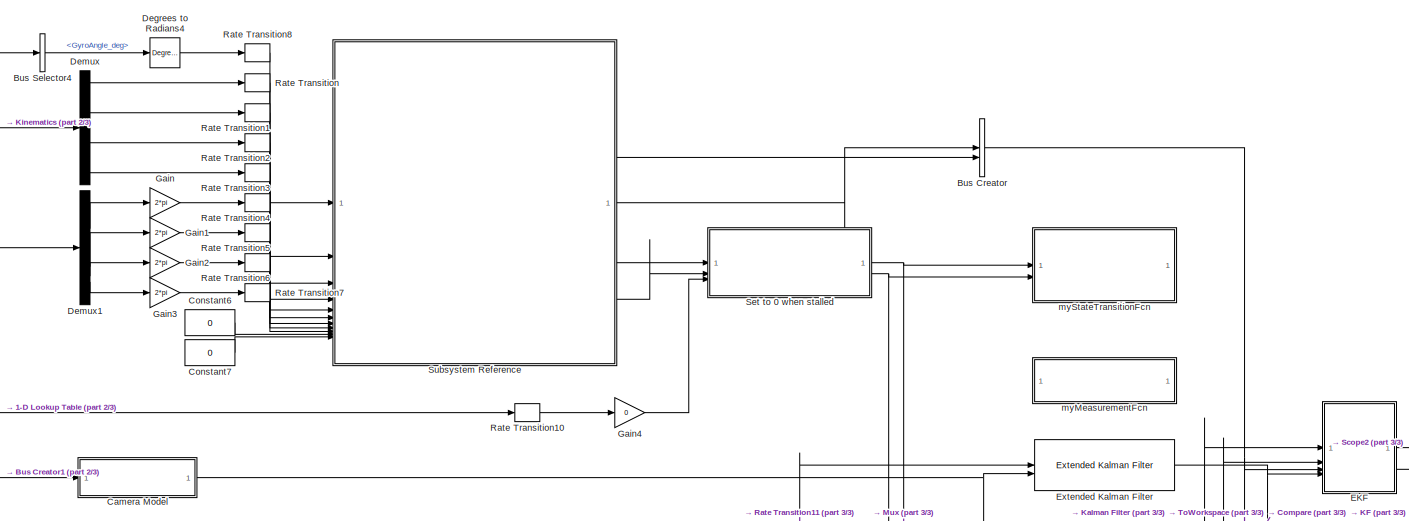
[diagram: root canvas - part 1/3, top center region]
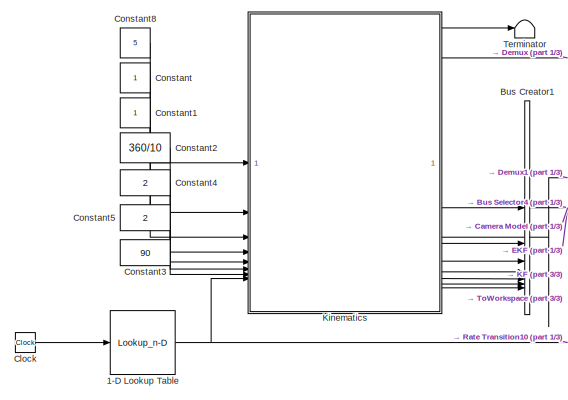
[diagram: root canvas - part 2/3, top left region]
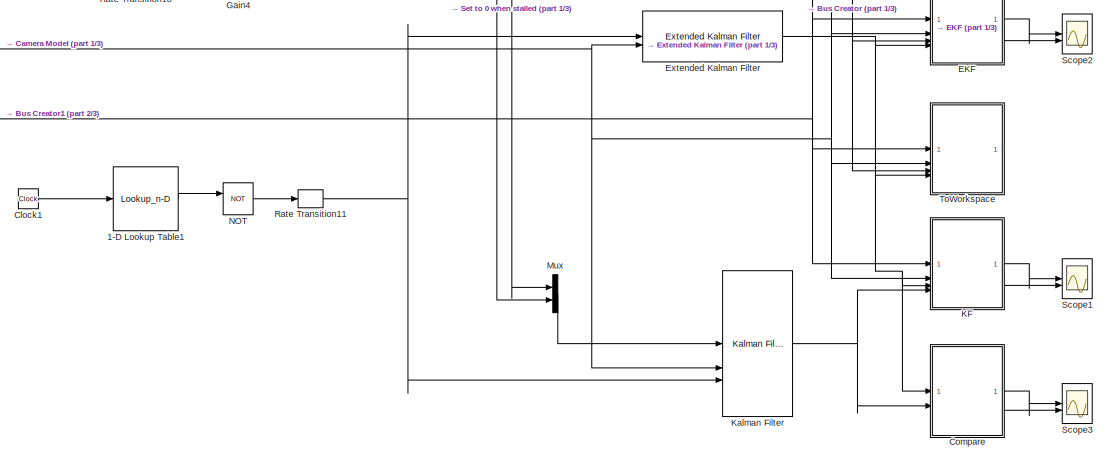
[diagram: root canvas - part 3/3, bottom right region]
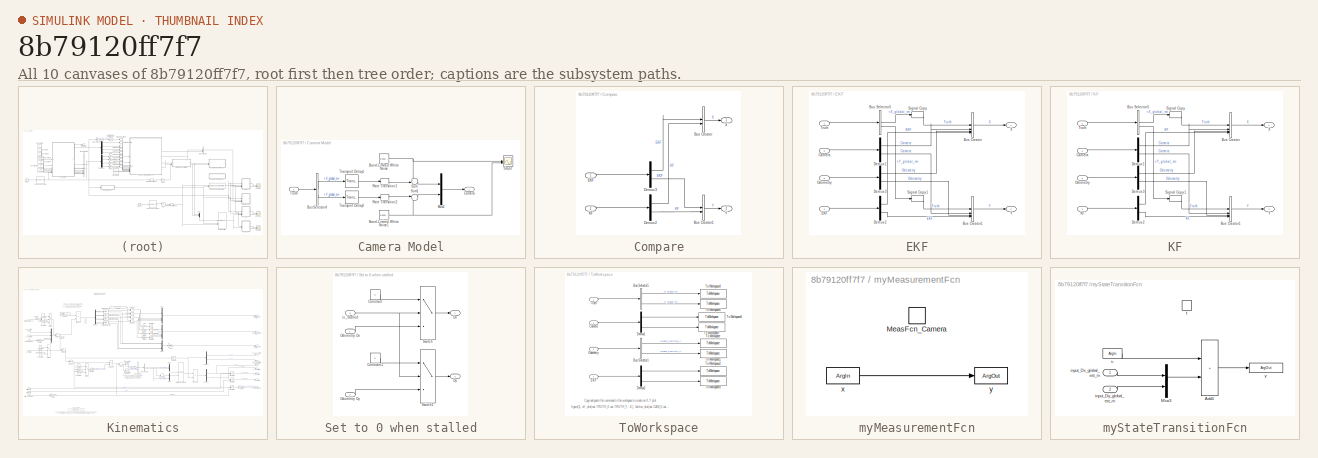
[diagram: thumbnail index - all 10 canvases of the model, root first then tree order]
MODEL slx_8b79120ff7f7
KIND model
CONFIG AbsTol = auto
CONFIG EnableMultiTasking = off
CONFIG FixedStep = auto
CONFIG MaxStep = 0.01
CONFIG MinStep = auto
CONFIG RelTol = 1e-3
CONFIG SampleTimeConstraint = Unconstrained
CONFIG SolverName = VariableStepAuto
CONFIG StartTime = 0.0
CONFIG StopTime = 20
BLOCK [Lookup_n-D] 1-D Lookup Table
  BreakpointsForDimension1 = [0 7 7.1 10 10.1 15]
  InputPortMap = u0
  InternalRulePriority = Speed
  NumberOfTableDimensions = 1
  RndMeth = Simplest
  Table = [0 0 1 1 0 0]*0
BLOCK [Lookup_n-D] 1-D Lookup Table1
  BreakpointsForDimension1 = [0 7 7.1 10 10.1 15]
  InputPortMap = u0
  InternalRulePriority = Speed
  NumberOfTableDimensions = 1
  RndMeth = Simplest
  Table = [0 0 1 1 0 0]
BLOCK [BusCreator] Bus Creator
  DisplayOption = bar
  InheritFromInputs = on
  Inputs = 2
BLOCK [BusCreator] Bus Creator1
  DisplayOption = bar
  InheritFromInputs = on
  Inputs = 7
BLOCK [BusSelector] Bus Selector4
  OutputSignals = GyroAngle_deg
BLOCK [SubSystem] Camera Model
BLOCK [Reference] Camera Model/Band-Limited White Noise  REF=simulink/Sources/Band-Limited
White Noise
  SourceBlock = simulink/Sources/Band-Limited\nWhite Noise
  SourceType = Band-Limited White Noise.
BLOCK [Reference] Camera Model/Band-Limited White Noise1  REF=simulink/Sources/Band-Limited
White Noise
  SourceBlock = simulink/Sources/Band-Limited\nWhite Noise
  SourceType = Band-Limited White Noise.
BLOCK [BusSelector] Camera Model/Bus Selector4
  OutputSignals = X_global_m,Y_global_m
BLOCK [Outport] Camera Model/Camera
BLOCK [Mux] Camera Model/Mux2
  DisplayOption = bar
  Inputs = 2
BLOCK [RateTransition] Camera Model/Rate Transition1
  OutPortSampleTime = t_sample
BLOCK [RateTransition] Camera Model/Rate Transition2
  OutPortSampleTime = t_sample
BLOCK [Scope] Camera Model/Scope
  Floating = off
  NumInputPorts = 2
  ScopeSpecificationString = Simulink.scopes.TimeScopeBlockCfg('CurrentConfiguration', extmgr.ConfigurationSet(extmgr.Configuration('Core','General UI',true),extmgr.Configuration('Core','Source UI',true),extmgr.Configuration('Sources','WiredSimulink',true,'DataLoggingVariableName','ScopeData1'),extmgr.Configuration('Visuals','Time Domain',true,'SerializedDisplays',{struct('MinYLimReal','-0.09072','MaxYLimReal','0.1248','YLabe...<+1433ch>
BLOCK [Sum] Camera Model/Sum
  Inputs = ++|
BLOCK [Sum] Camera Model/Sum1
  Inputs = |++
BLOCK [TransportDelay] Camera Model/Transport Delay1
  DelayTime = 0.1
BLOCK [TransportDelay] Camera Model/Transport Delay2
  DelayTime = 0.1
BLOCK [Inport] Camera Model/Truth
BLOCK [Clock] Clock
BLOCK [Clock] Clock1
BLOCK [SubSystem] Compare
BLOCK [BusCreator] Compare/Bus Creator
  DisplayOption = bar
  InheritFromInputs = on
  Inputs = 2
BLOCK [BusCreator] Compare/Bus Creator1
  DisplayOption = bar
  InheritFromInputs = on
  Inputs = 2
BLOCK [Demux] Compare/Demux2
  Outputs = 2
BLOCK [Demux] Compare/Demux3
  Outputs = 2
BLOCK [Inport] Compare/EKF
BLOCK [Inport] Compare/KF
  Port = 2
BLOCK [Outport] Compare/X
BLOCK [Outport] Compare/Y
  Port = 2
BLOCK [Constant] Constant
BLOCK [Constant] Constant1
BLOCK [Constant] Constant2
  Value = 360/10
BLOCK [Constant] Constant3
  Value = 90
BLOCK [Constant] Constant4
  Value = 2
BLOCK [Constant] Constant5
  Value = 2
BLOCK [Constant] Constant6
  Value = 0
BLOCK [Constant] Constant7
  Value = 0
BLOCK [Constant] Constant8
  Value = 5
BLOCK [Reference] Degrees to Radians4  REF=simulink_extras/Transformations/Degrees to
Radians
  SourceBlock = simulink_extras/Transformations/Degrees to\nRadians
  SourceType = DegreesToRadians
BLOCK [Demux] Demux
BLOCK [Demux] Demux1
BLOCK [SubSystem] EKF
BLOCK [BusCreator] EKF/Bus Creator
  DisplayOption = bar
  InheritFromInputs = on
  Inputs = 4
BLOCK [BusCreator] EKF/Bus Creator1
  DisplayOption = bar
  InheritFromInputs = on
  Inputs = 4
BLOCK [BusSelector] EKF/Bus Selector5
  OutputSignals = X_global_m,Y_global_m
BLOCK [Inport] EKF/Camera
  Port = 2
BLOCK [Demux] EKF/Demux1
  Outputs = 2
BLOCK [Demux] EKF/Demux2
  Outputs = 2
BLOCK [Demux] EKF/Demux3
  Outputs = 2
BLOCK [Inport] EKF/EKF
  Port = 4
BLOCK [Inport] EKF/Odometry
  Port = 3
BLOCK [SignalConversion] EKF/Signal Copy
  OverrideOpt = off
BLOCK [SignalConversion] EKF/Signal Copy1
  OverrideOpt = off
BLOCK [Inport] EKF/Truth
BLOCK [Outport] EKF/X
BLOCK [Outport] EKF/Y
  Port = 2
BLOCK [Reference] Extended Kalman Filter  REF=sharedTrackingLibrary/Extended Kalman Filter
  LibrarySourceBlock = cstblocks/State Estimation/Extended Kalman Filter
  SourceBlock = sharedTrackingLibrary/Extended Kalman Filter
  SourceType = Extended Kalman Filter
BLOCK [Gain] Gain
  Gain = 2*pi
BLOCK [Gain] Gain1
  Gain = 2*pi
BLOCK [Gain] Gain2
  Gain = 2*pi
BLOCK [Gain] Gain3
  Gain = 2*pi
BLOCK [Gain] Gain4
  Gain = 0
BLOCK [SubSystem] KF
BLOCK [BusCreator] KF/Bus Creator
  DisplayOption = bar
  InheritFromInputs = on
  Inputs = 4
BLOCK [BusCreator] KF/Bus Creator1
  DisplayOption = bar
  InheritFromInputs = on
  Inputs = 4
BLOCK [BusSelector] KF/Bus Selector5
  OutputSignals = X_global_m,Y_global_m
BLOCK [Inport] KF/Camera
  Port = 2
BLOCK [Demux] KF/Demux1
  Outputs = 2
BLOCK [Demux] KF/Demux2
  Outputs = 2
BLOCK [Demux] KF/Demux3
  Outputs = 2
BLOCK [Inport] KF/KF
  Port = 4
BLOCK [Inport] KF/Odometry
  Port = 3
BLOCK [SignalConversion] KF/Signal Copy
  OverrideOpt = off
BLOCK [SignalConversion] KF/Signal Copy1
  OverrideOpt = off
BLOCK [Inport] KF/Truth
BLOCK [Outport] KF/X
BLOCK [Outport] KF/Y
  Port = 2
BLOCK [Reference] Kalman Filter  REF=ctrlSharedLib/Kalman Filter
  LibrarySourceBlock = cstblocks/State Estimation/Kalman Filter
  SourceBlock = ctrlSharedLib/Kalman Filter
  SourceType = ctrlKalmanFilter
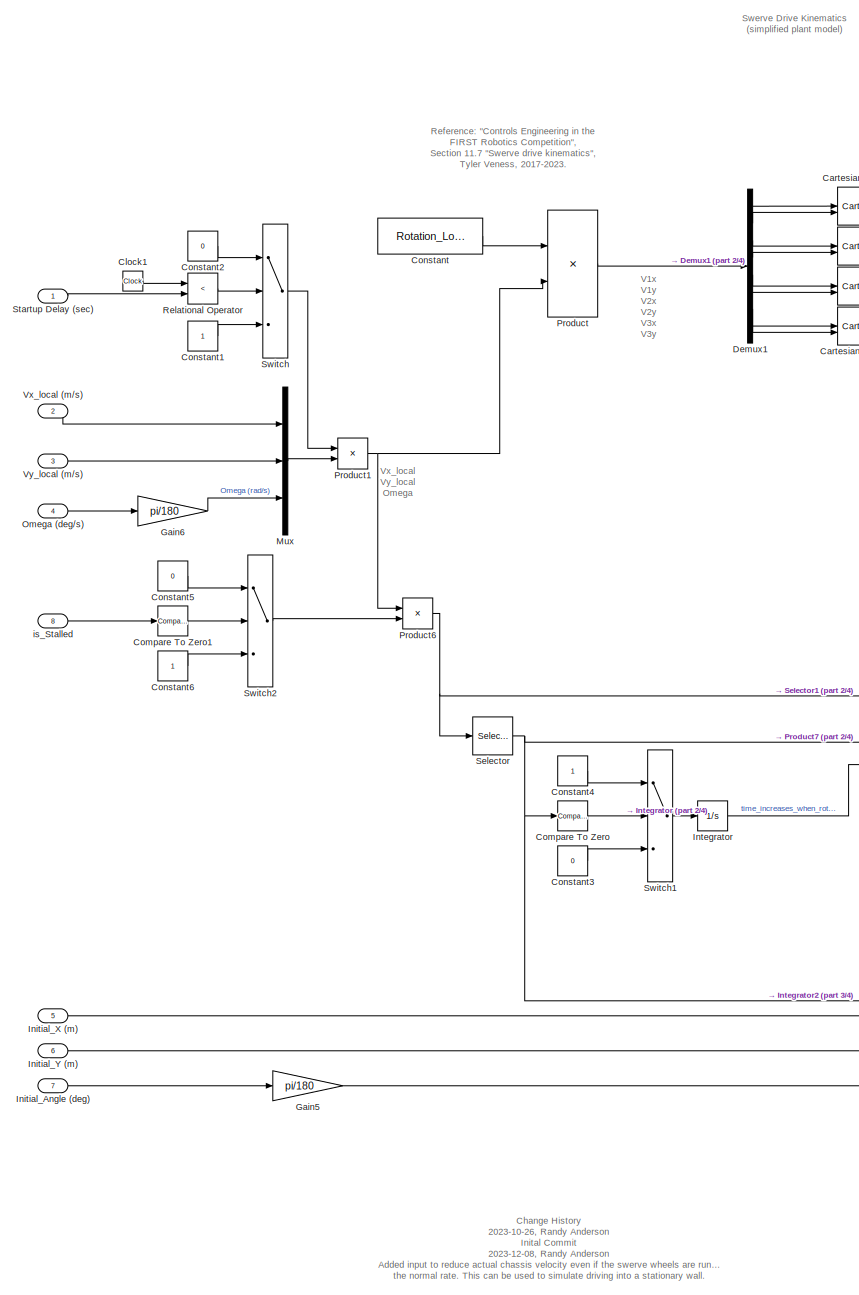
[diagram: Kinematics - part 1/4, left side, full height]
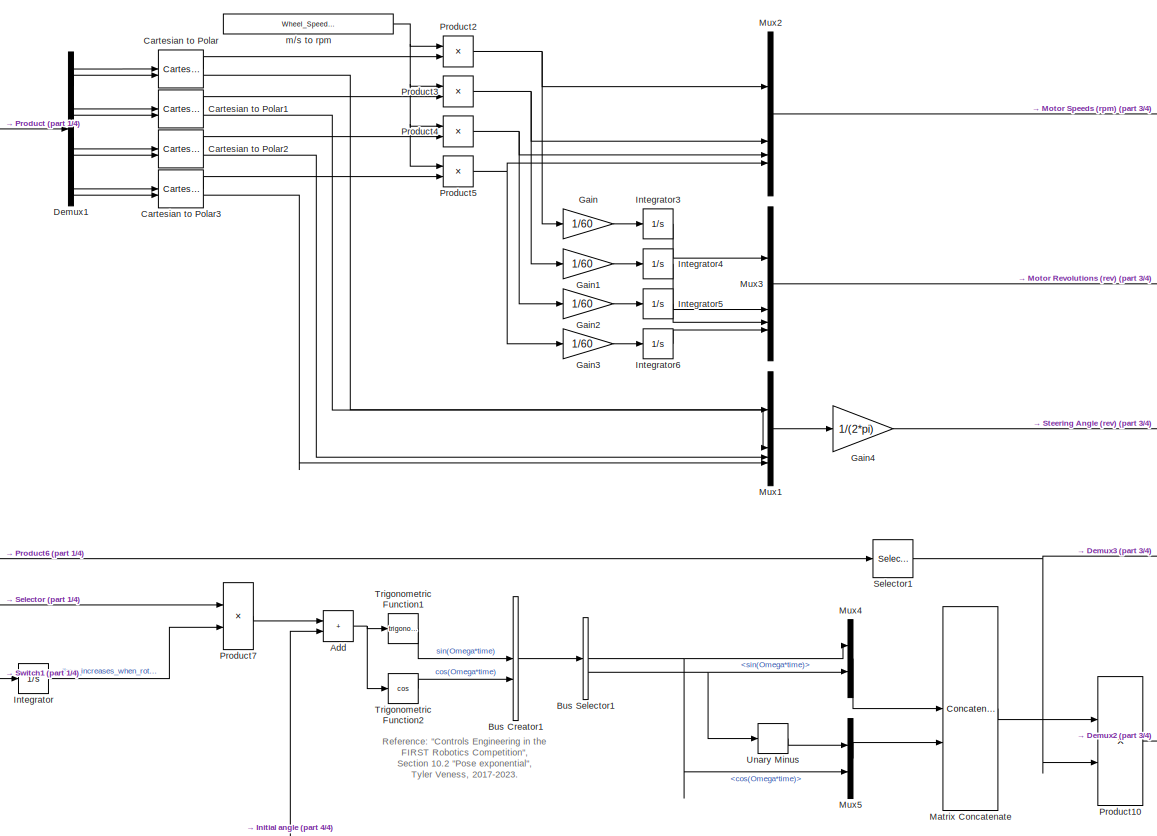
[diagram: Kinematics - part 2/4, central region]
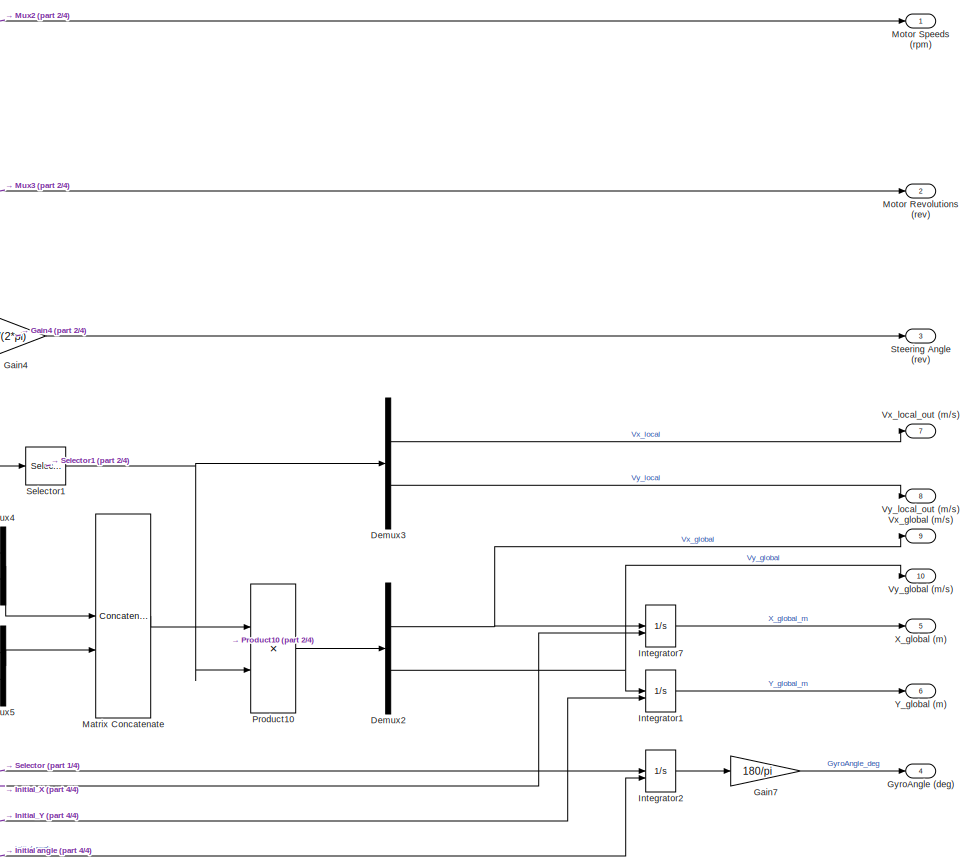
[diagram: Kinematics - part 3/4, middle right region]
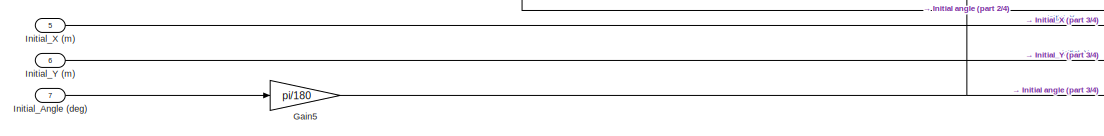
[diagram: Kinematics - part 4/4, bottom left region]
BLOCK [SubSystem] Kinematics
BLOCK [Sum] Kinematics/Add
  IconShape = rectangular
BLOCK [BusCreator] Kinematics/Bus Creator1
  DisplayOption = bar
  InheritFromInputs = on
  Inputs = 2
BLOCK [BusSelector] Kinematics/Bus Selector1
  OutputSignals = cos(Omega*time),sin(Omega*time)
BLOCK [Reference] Kinematics/Cartesian to Polar  REF=simulink_extras/Transformations/Cartesian to
Polar
  SourceBlock = simulink_extras/Transformations/Cartesian to\nPolar
  SourceType = Cart2Polar
BLOCK [Reference] Kinematics/Cartesian to Polar1  REF=simulink_extras/Transformations/Cartesian to
Polar
  SourceBlock = simulink_extras/Transformations/Cartesian to\nPolar
  SourceType = Cart2Polar
BLOCK [Reference] Kinematics/Cartesian to Polar2  REF=simulink_extras/Transformations/Cartesian to
Polar
  SourceBlock = simulink_extras/Transformations/Cartesian to\nPolar
  SourceType = Cart2Polar
BLOCK [Reference] Kinematics/Cartesian to Polar3  REF=simulink_extras/Transformations/Cartesian to
Polar
  SourceBlock = simulink_extras/Transformations/Cartesian to\nPolar
  SourceType = Cart2Polar
BLOCK [Clock] Kinematics/Clock1
BLOCK [Reference] Kinematics/Compare To Zero  REF=simulink/Logic and Bit
Operations/Compare
To Zero
  SourceBlock = simulink/Logic and Bit\nOperations/Compare\nTo Zero
  SourceType = Compare To Zero
BLOCK [Reference] Kinematics/Compare To Zero1  REF=simulink/Logic and Bit
Operations/Compare
To Zero
  SourceBlock = simulink/Logic and Bit\nOperations/Compare\nTo Zero
  SourceType = Compare To Zero
BLOCK [Constant] Kinematics/Constant
  Value = Rotation_Local
BLOCK [Constant] Kinematics/Constant1
BLOCK [Constant] Kinematics/Constant2
  Value = 0
BLOCK [Constant] Kinematics/Constant3
  Value = 0
BLOCK [Constant] Kinematics/Constant4
BLOCK [Constant] Kinematics/Constant5
  Value = 0
BLOCK [Constant] Kinematics/Constant6
BLOCK [Demux] Kinematics/Demux1
  Outputs = 8
BLOCK [Demux] Kinematics/Demux2
  Outputs = 2
BLOCK [Demux] Kinematics/Demux3
  Outputs = 2
BLOCK [Gain] Kinematics/Gain
  Gain = 1/60
BLOCK [Gain] Kinematics/Gain1
  Gain = 1/60
BLOCK [Gain] Kinematics/Gain2
  Gain = 1/60
BLOCK [Gain] Kinematics/Gain3
  Gain = 1/60
BLOCK [Gain] Kinematics/Gain4
  Gain = 1/(2*pi)
BLOCK [Gain] Kinematics/Gain5
  Gain = pi/180
BLOCK [Gain] Kinematics/Gain6
  Gain = pi/180
BLOCK [Gain] Kinematics/Gain7
  Gain = 180/pi
BLOCK [Outport] Kinematics/GyroAngle (deg)
  Port = 4
BLOCK [Inport] Kinematics/Initial_Angle (deg)
  Port = 7
BLOCK [Inport] Kinematics/Initial_X (m)
  Port = 5
BLOCK [Inport] Kinematics/Initial_Y (m)
  Port = 6
BLOCK [Integrator] Kinematics/Integrator
BLOCK [Integrator] Kinematics/Integrator1
  InitialConditionSource = external
BLOCK [Integrator] Kinematics/Integrator2
  InitialConditionSource = external
BLOCK [Integrator] Kinematics/Integrator3
BLOCK [Integrator] Kinematics/Integrator4
BLOCK [Integrator] Kinematics/Integrator5
BLOCK [Integrator] Kinematics/Integrator6
BLOCK [Integrator] Kinematics/Integrator7
  InitialConditionSource = external
BLOCK [Concatenate] Kinematics/Matrix Concatenate
  ConcatenateDimension = 2
  Mode = Multidimensional array
BLOCK [Outport] Kinematics/Motor Revolutions (rev)
  Port = 2
BLOCK [Outport] Kinematics/Motor Speeds (rpm)
BLOCK [Mux] Kinematics/Mux
  DisplayOption = bar
  Inputs = 3
BLOCK [Mux] Kinematics/Mux1
  DisplayOption = bar
BLOCK [Mux] Kinematics/Mux2
  DisplayOption = bar
BLOCK [Mux] Kinematics/Mux3
  DisplayOption = bar
BLOCK [Mux] Kinematics/Mux4
  DisplayOption = bar
  Inputs = 2
BLOCK [Mux] Kinematics/Mux5
  DisplayOption = bar
  Inputs = 2
BLOCK [Inport] Kinematics/Omega (deg//s)
  Port = 4
BLOCK [Product] Kinematics/Product
  Multiplication = Matrix(*)
BLOCK [Product] Kinematics/Product1
BLOCK [Product] Kinematics/Product10
  Multiplication = Matrix(*)
BLOCK [Product] Kinematics/Product2
BLOCK [Product] Kinematics/Product3
BLOCK [Product] Kinematics/Product4
BLOCK [Product] Kinematics/Product5
BLOCK [Product] Kinematics/Product6
BLOCK [Product] Kinematics/Product7
BLOCK [RelationalOperator] Kinematics/Relational Operator
  InputSameDT = off
  Operator = <
  OutDataTypeStr = boolean
  RndMeth = Simplest
BLOCK [Selector] Kinematics/Selector
  IndexOptions = Index vector (dialog)
  Indices = 3
  InputPortWidth = 3
  OutputSizes = 1
BLOCK [Selector] Kinematics/Selector1
  IndexOptions = Index vector (dialog)
  Indices = [1 2]
  InputPortWidth = 3
  OutputSizes = 1
BLOCK [Inport] Kinematics/Startup Delay (sec)
BLOCK [Outport] Kinematics/Steering Angle (rev)
  Port = 3
BLOCK [Switch] Kinematics/Switch
  Criteria = u2 ~= 0
  InputSameDT = off
  SaturateOnIntegerOverflow = off
BLOCK [Switch] Kinematics/Switch1
  Criteria = u2 ~= 0
  InputSameDT = off
  SaturateOnIntegerOverflow = off
BLOCK [Switch] Kinematics/Switch2
  Criteria = u2 ~= 0
  InputSameDT = off
  SaturateOnIntegerOverflow = off
BLOCK [Trigonometry] Kinematics/Trigonometric Function1
BLOCK [Trigonometry] Kinematics/Trigonometric Function2
  Operator = cos
BLOCK [UnaryMinus] Kinematics/Unary Minus
BLOCK [Outport] Kinematics/Vx_global (m//s)
  Port = 9
BLOCK [Inport] Kinematics/Vx_local (m//s)
  Port = 2
BLOCK [Outport] Kinematics/Vx_local_out (m//s)
  Port = 7
BLOCK [Outport] Kinematics/Vy_global (m//s)
  Port = 10
BLOCK [Inport] Kinematics/Vy_local (m//s)
  Port = 3
BLOCK [Outport] Kinematics/Vy_local_out (m//s)
  Port = 8
BLOCK [Outport] Kinematics/X_global (m)
  Port = 5
BLOCK [Outport] Kinematics/Y_global (m)
  Port = 6
BLOCK [Inport] Kinematics/is_Stalled
  Port = 8
BLOCK [Constant] Kinematics/m//s to rpm
  Value = Wheel_Speed_to_Motor_Speed
BLOCK [Mux] Mux
  DisplayOption = bar
  Inputs = 2
BLOCK [Logic] NOT
  AllPortsSameDT = off
  IconShape = distinctive
  Operator = NOT
  OutDataTypeStr = boolean
BLOCK [RateTransition] Rate Transition
  OutPortSampleTime = t_sample
BLOCK [RateTransition] Rate Transition1
  OutPortSampleTime = t_sample
BLOCK [RateTransition] Rate Transition10
  OutPortSampleTime = t_sample
BLOCK [RateTransition] Rate Transition11
  OutPortSampleTime = t_sample
BLOCK [RateTransition] Rate Transition2
  OutPortSampleTime = t_sample
BLOCK [RateTransition] Rate Transition3
  OutPortSampleTime = t_sample
BLOCK [RateTransition] Rate Transition4
  OutPortSampleTime = t_sample
BLOCK [RateTransition] Rate Transition5
  OutPortSampleTime = t_sample
BLOCK [RateTransition] Rate Transition6
  OutPortSampleTime = t_sample
BLOCK [RateTransition] Rate Transition7
  OutPortSampleTime = t_sample
BLOCK [RateTransition] Rate Transition8
  OutPortSampleTime = t_sample
BLOCK [Scope] Scope1
  Floating = off
  NumInputPorts = 2
  ScopeSpecificationString = Simulink.scopes.TimeScopeBlockCfg('CurrentConfiguration', extmgr.ConfigurationSet(extmgr.Configuration('Core','General UI',true),extmgr.Configuration('Core','Source UI',true),extmgr.Configuration('Sources','WiredSimulink',true,'DataLoggingVariableName','ScopeData2'),extmgr.Configuration('Visuals','Time Domain',true,'SerializedDisplays',{struct('MinYLimReal','-2.43861','MaxYLimReal','3.29241','YLab...<+2116ch>
BLOCK [Scope] Scope2
  Floating = off
  NumInputPorts = 2
  ScopeSpecificationString = Simulink.scopes.TimeScopeBlockCfg('CurrentConfiguration', extmgr.ConfigurationSet(extmgr.Configuration('Core','General UI',true),extmgr.Configuration('Core','Source UI',true),extmgr.Configuration('Sources','WiredSimulink',true,'DataLoggingVariableName','ScopeData1'),extmgr.Configuration('Visuals','Time Domain',true,'SerializedDisplays',{struct('MinYLimReal','-4.42916','MaxYLimReal','3.51358','YLab...<+2130ch>
BLOCK [Scope] Scope3
  Floating = off
  NumInputPorts = 2
  ScopeSpecificationString = Simulink.scopes.TimeScopeBlockCfg('CurrentConfiguration', extmgr.ConfigurationSet(extmgr.Configuration('Core','General UI',true),extmgr.Configuration('Core','Source UI',true),extmgr.Configuration('Sources','WiredSimulink',true,'DataLoggingVariableName','ScopeData1'),extmgr.Configuration('Visuals','Time Domain',true,'SerializedDisplays',{struct('MinYLimReal','-2.37242','MaxYLimReal','3.23271','YLab...<+2074ch>
BLOCK [SubSystem] Set to 0 when stalled
BLOCK [Constant] Set to 0 when stalled/Constant
  Value = 0
BLOCK [Constant] Set to 0 when stalled/Constant1
  Value = 0
BLOCK [Outport] Set to 0 when stalled/Dx
BLOCK [Outport] Set to 0 when stalled/Dy
  Port = 2
BLOCK [Inport] Set to 0 when stalled/Odometry Dx
BLOCK [Inport] Set to 0 when stalled/Odometry Dy
  Port = 2
BLOCK [Switch] Set to 0 when stalled/Switch
  Criteria = u2 ~= 0
  InputSameDT = off
  SaturateOnIntegerOverflow = off
BLOCK [Switch] Set to 0 when stalled/Switch1
  Criteria = u2 ~= 0
  InputSameDT = off
  SaturateOnIntegerOverflow = off
BLOCK [Inport] Set to 0 when stalled/is_Stalled
  Port = 3
BLOCK [SubSystem] Subsystem Reference
  ReferencedSubsystem = Odometry_sub
BLOCK [Terminator] Terminator
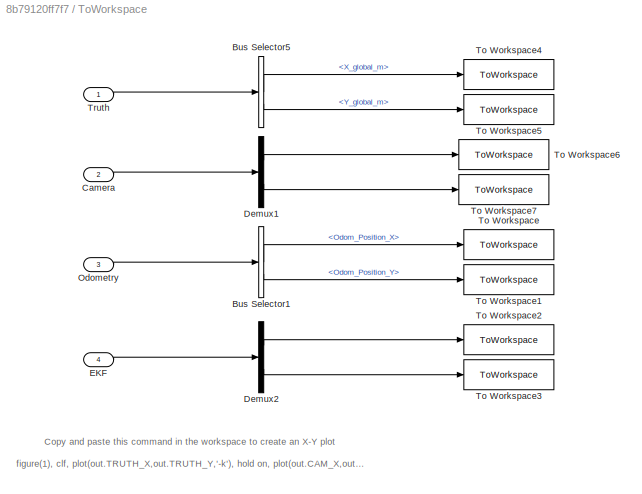
BLOCK [SubSystem] ToWorkspace
BLOCK [BusSelector] ToWorkspace/Bus Selector1
  OutputSignals = Odom_Position_X,Odom_Position_Y
BLOCK [BusSelector] ToWorkspace/Bus Selector5
  OutputSignals = X_global_m,Y_global_m
BLOCK [Inport] ToWorkspace/Camera
  Port = 2
BLOCK [Demux] ToWorkspace/Demux1
  Outputs = 2
BLOCK [Demux] ToWorkspace/Demux2
  Outputs = 2
BLOCK [Inport] ToWorkspace/EKF
  Port = 4
BLOCK [Inport] ToWorkspace/Odometry
  Port = 3
BLOCK [ToWorkspace] ToWorkspace/To Workspace
  FixptAsFi = on
  MaxDataPoints = inf
  SampleTime = -1
  VariableName = ODO_X
BLOCK [ToWorkspace] ToWorkspace/To Workspace1
  FixptAsFi = on
  MaxDataPoints = inf
  SampleTime = -1
  VariableName = ODO_Y
BLOCK [ToWorkspace] ToWorkspace/To Workspace2
  FixptAsFi = on
  MaxDataPoints = inf
  SampleTime = -1
  VariableName = EKF_X
BLOCK [ToWorkspace] ToWorkspace/To Workspace3
  FixptAsFi = on
  MaxDataPoints = inf
  SampleTime = -1
  VariableName = EKF_Y
BLOCK [ToWorkspace] ToWorkspace/To Workspace4
  FixptAsFi = on
  MaxDataPoints = inf
  SampleTime = -1
  VariableName = TRUTH_X
BLOCK [ToWorkspace] ToWorkspace/To Workspace5
  FixptAsFi = on
  MaxDataPoints = inf
  SampleTime = -1
  VariableName = TRUTH_Y
BLOCK [ToWorkspace] ToWorkspace/To Workspace6
  FixptAsFi = on
  MaxDataPoints = inf
  SampleTime = -1
  VariableName = CAM_X
BLOCK [ToWorkspace] ToWorkspace/To Workspace7
  FixptAsFi = on
  MaxDataPoints = inf
  SampleTime = -1
  VariableName = CAM_Y
BLOCK [Inport] ToWorkspace/Truth
BLOCK [SubSystem] myMeasurementFcn
  TreatAsAtomicUnit = on
BLOCK [TriggerPort] myMeasurementFcn/MeasFcn_Camera
  FunctionName = MeasFcn_Camera
  FunctionVisibility = scoped
  IsSimulinkFunction = on
  StatesWhenEnabling = held
  TriggerType = function-call
  VariantControl = (inherit)
BLOCK [ArgIn] myMeasurementFcn/x
  ArgumentName = x
  DisableCoverage = on
  PortDimensions = 2
BLOCK [ArgOut] myMeasurementFcn/y
  ArgumentName = y
  DisableCoverage = on
  PortDimensions = 2
BLOCK [SubSystem] myStateTransitionFcn
  TreatAsAtomicUnit = on
BLOCK [Sum] myStateTransitionFcn/Add1
  IconShape = rectangular
BLOCK [Mux] myStateTransitionFcn/Mux3
  DisplayOption = bar
  Inputs = 2
BLOCK [TriggerPort] myStateTransitionFcn/f
  FunctionName = StateFcn
  FunctionVisibility = scoped
  IsSimulinkFunction = on
  StatesWhenEnabling = held
  TriggerType = function-call
  VariantControl = (inherit)
BLOCK [Inport] myStateTransitionFcn/input_Dx_global_est_m
BLOCK [Inport] myStateTransitionFcn/input_Dy_global_est_m
  Port = 2
BLOCK [ArgIn] myStateTransitionFcn/u
  ArgumentName = x
  DisableCoverage = on
  PortDimensions = 2
BLOCK [ArgOut] myStateTransitionFcn/y
  ArgumentName = xNext
  DisableCoverage = on
  PortDimensions = 2
ANNOTATION Kinematics: Swerve Drive Kinematics (simplified plant model)
ANNOTATION Kinematics: Change History 2023-10-26, Randy Anderson Inital Commit 2023-12-08, Randy Anderson Added input to reduce actual chassis velocity even if the swerve wheels are running at the normal rate. This can be used to simulate driving into a stationary wall.
ANNOTATION Kinematics: Reference: "Controls Engineering in the FIRST Robotics Competition", Section 10.2 "Pose exponential", Tyler Veness, 2017-2023.
ANNOTATION Kinematics: Reference: "Controls Engineering in the FIRST Robotics Competition", Section 11.7 "Swerve drive kinematics", Tyler Veness, 2017-2023.
ANNOTATION Kinematics: V1x V1y V2x V2y V3x V3y V4x V4y
ANNOTATION Kinematics: Vx_local Vy_local Omega
ANNOTATION ToWorkspace: Copy and paste this command in the workspace to create an X-Y plot figure(1), clf, plot(out.TRUTH_X,out.TRUTH_Y,'-k'), hold on, plot(out.CAM_X,out.CAM_Y,'-g'), plot(out.ODO_X,out.ODO_Y,'--b'), plot(out.EKF_X,out.EKF_Y,'-.r'), axis equal, grid on, legend('Truth','Camera','Odometry','Extended Kalman Filter','Location','eastoutside')
LINE 1-D Lookup Table1:1 -> NOT:1
NET 1-D Lookup Table:1 -> Kinematics:8, Rate Transition10:1
NET Bus Creator1:1 -> Bus Selector4:1, Camera Model:1, EKF:1, KF:1, ToWorkspace:1
NET Bus Creator:1 -> EKF:3, ToWorkspace:3
LINE Bus Selector4:1 -> Degrees to Radians4:1
NET Camera Model/Band-Limited White Noise1:1 -> Camera Model/Scope:2, Camera Model/Sum1:2
NET Camera Model/Band-Limited White Noise:1 -> Camera Model/Scope:1, Camera Model/Sum:1
LINE Camera Model/Bus Selector4:1 -> Camera Model/Transport Delay1:1
LINE Camera Model/Bus Selector4:2 -> Camera Model/Transport Delay2:1
LINE Camera Model/Mux2:1 -> Camera Model/Camera:1
LINE Camera Model/Rate Transition1:1 -> Camera Model/Sum:2
LINE Camera Model/Rate Transition2:1 -> Camera Model/Sum1:1
LINE Camera Model/Sum1:1 -> Camera Model/Mux2:2
LINE Camera Model/Sum:1 -> Camera Model/Mux2:1
LINE Camera Model/Transport Delay1:1 -> Camera Model/Rate Transition1:1
LINE Camera Model/Transport Delay2:1 -> Camera Model/Rate Transition2:1
LINE Camera Model/Truth:1 -> Camera Model/Bus Selector4:1
NET Camera Model:1 -> EKF:2, Extended Kalman Filter:2, KF:2, Kalman Filter:2, ToWorkspace:2
LINE Clock1:1 -> 1-D Lookup Table1:1
LINE Clock:1 -> 1-D Lookup Table:1
LINE Compare/Bus Creator1:1 -> Compare/Y:1
LINE Compare/Bus Creator:1 -> Compare/X:1
LINE Compare/Demux2:1 -> Compare/Bus Creator:2
LINE Compare/Demux2:2 -> Compare/Bus Creator1:2
LINE Compare/Demux3:1 -> Compare/Bus Creator:1
LINE Compare/Demux3:2 -> Compare/Bus Creator1:1
LINE Compare/EKF:1 -> Compare/Demux3:1
LINE Compare/KF:1 -> Compare/Demux2:1
LINE Compare:1 -> Scope3:1
LINE Compare:2 -> Scope3:2
LINE Constant1:1 -> Kinematics:3
LINE Constant2:1 -> Kinematics:4
LINE Constant3:1 -> Kinematics:7
LINE Constant4:1 -> Kinematics:5
LINE Constant5:1 -> Kinematics:6
LINE Constant6:1 -> Subsystem Reference:10
LINE Constant7:1 -> Subsystem Reference:11
LINE Constant8:1 -> Kinematics:1
LINE Constant:1 -> Kinematics:2
LINE Degrees to Radians4:1 -> Rate Transition8:1
LINE Demux1:1 -> Gain:1
LINE Demux1:2 -> Gain1:1
LINE Demux1:3 -> Gain2:1
LINE Demux1:4 -> Gain3:1
LINE Demux:1 -> Rate Transition:1
LINE Demux:2 -> Rate Transition1:1
LINE Demux:3 -> Rate Transition2:1
LINE Demux:4 -> Rate Transition3:1
LINE EKF/Bus Creator1:1 -> EKF/Y:1
LINE EKF/Bus Creator:1 -> EKF/X:1
LINE EKF/Bus Selector5:1 -> EKF/Signal Copy:1
LINE EKF/Bus Selector5:2 -> EKF/Signal Copy1:1
LINE EKF/Camera:1 -> EKF/Demux1:1
LINE EKF/Demux1:1 -> EKF/Bus Creator:2
LINE EKF/Demux1:2 -> EKF/Bus Creator1:2
LINE EKF/Demux2:1 -> EKF/Bus Creator:4
LINE EKF/Demux2:2 -> EKF/Bus Creator1:4
LINE EKF/Demux3:1 -> EKF/Bus Creator:3
LINE EKF/Demux3:2 -> EKF/Bus Creator1:3
LINE EKF/EKF:1 -> EKF/Demux2:1
LINE EKF/Odometry:1 -> EKF/Demux3:1
LINE EKF/Signal Copy1:1 -> EKF/Bus Creator1:1
LINE EKF/Signal Copy:1 -> EKF/Bus Creator:1
LINE EKF/Truth:1 -> EKF/Bus Selector5:1
LINE EKF:1 -> Scope2:1
LINE EKF:2 -> Scope2:2
NET Extended Kalman Filter:1 -> Compare:1, EKF:4, KF:3, ToWorkspace:4
LINE Gain1:1 -> Rate Transition5:1
LINE Gain2:1 -> Rate Transition6:1
LINE Gain3:1 -> Rate Transition7:1
LINE Gain4:1 -> Set to 0 when stalled:3
LINE Gain:1 -> Rate Transition4:1
LINE KF/Bus Creator1:1 -> KF/Y:1
LINE KF/Bus Creator:1 -> KF/X:1
LINE KF/Bus Selector5:1 -> KF/Signal Copy:1
LINE KF/Bus Selector5:2 -> KF/Signal Copy1:1
LINE KF/Camera:1 -> KF/Demux1:1
LINE KF/Demux1:1 -> KF/Bus Creator:2
LINE KF/Demux1:2 -> KF/Bus Creator1:2
LINE KF/Demux2:1 -> KF/Bus Creator:4
LINE KF/Demux2:2 -> KF/Bus Creator1:4
LINE KF/Demux3:1 -> KF/Bus Creator:3
LINE KF/Demux3:2 -> KF/Bus Creator1:3
LINE KF/KF:1 -> KF/Demux2:1
LINE KF/Odometry:1 -> KF/Demux3:1
LINE KF/Signal Copy1:1 -> KF/Bus Creator1:1
LINE KF/Signal Copy:1 -> KF/Bus Creator:1
LINE KF/Truth:1 -> KF/Bus Selector5:1
LINE KF:1 -> Scope1:1
LINE KF:2 -> Scope1:2
NET Kalman Filter:1 -> Compare:2, KF:4
NET Kinematics/Add:1 -> Kinematics/Trigonometric Function1:1, Kinematics/Trigonometric Function2:1
LINE Kinematics/Bus Creator1:1 -> Kinematics/Bus Selector1:1
NET Kinematics/Bus Selector1:1 -> Kinematics/Mux4:1, Kinematics/Mux5:2
NET Kinematics/Bus Selector1:2 -> Kinematics/Mux4:2, Kinematics/Unary Minus:1
LINE Kinematics/Cartesian to Polar1:1 -> Kinematics/Product3:2
LINE Kinematics/Cartesian to Polar1:2 -> Kinematics/Mux1:2
LINE Kinematics/Cartesian to Polar2:1 -> Kinematics/Product4:2
LINE Kinematics/Cartesian to Polar2:2 -> Kinematics/Mux1:3
LINE Kinematics/Cartesian to Polar3:1 -> Kinematics/Product5:2
LINE Kinematics/Cartesian to Polar3:2 -> Kinematics/Mux1:4
LINE Kinematics/Cartesian to Polar:1 -> Kinematics/Product2:2
LINE Kinematics/Cartesian to Polar:2 -> Kinematics/Mux1:1
LINE Kinematics/Clock1:1 -> Kinematics/Relational Operator:1
LINE Kinematics/Compare To Zero1:1 -> Kinematics/Switch2:2
LINE Kinematics/Compare To Zero:1 -> Kinematics/Switch1:2
LINE Kinematics/Constant1:1 -> Kinematics/Switch:3
LINE Kinematics/Constant2:1 -> Kinematics/Switch:1
LINE Kinematics/Constant3:1 -> Kinematics/Switch1:3
LINE Kinematics/Constant4:1 -> Kinematics/Switch1:1
LINE Kinematics/Constant5:1 -> Kinematics/Switch2:1
LINE Kinematics/Constant6:1 -> Kinematics/Switch2:3
LINE Kinematics/Constant:1 -> Kinematics/Product:1
LINE Kinematics/Demux1:1 -> Kinematics/Cartesian to Polar:1
LINE Kinematics/Demux1:2 -> Kinematics/Cartesian to Polar:2
LINE Kinematics/Demux1:3 -> Kinematics/Cartesian to Polar1:1
LINE Kinematics/Demux1:4 -> Kinematics/Cartesian to Polar1:2
LINE Kinematics/Demux1:5 -> Kinematics/Cartesian to Polar2:1
LINE Kinematics/Demux1:6 -> Kinematics/Cartesian to Polar2:2
LINE Kinematics/Demux1:7 -> Kinematics/Cartesian to Polar3:1
LINE Kinematics/Demux1:8 -> Kinematics/Cartesian to Polar3:2
NET Kinematics/Demux2:1 -> Kinematics/Integrator7:1, Kinematics/Vx_global (m//s):1
NET Kinematics/Demux2:2 -> Kinematics/Integrator1:1, Kinematics/Vy_global (m//s):1
LINE Kinematics/Demux3:1 -> Kinematics/Vx_local_out (m//s):1
LINE Kinematics/Demux3:2 -> Kinematics/Vy_local_out (m//s):1
LINE Kinematics/Gain1:1 -> Kinematics/Integrator4:1
LINE Kinematics/Gain2:1 -> Kinematics/Integrator5:1
LINE Kinematics/Gain3:1 -> Kinematics/Integrator6:1
LINE Kinematics/Gain4:1 -> Kinematics/Steering Angle (rev):1
NET Kinematics/Gain5:1 -> Kinematics/Add:2, Kinematics/Integrator2:2
LINE Kinematics/Gain6:1 -> Kinematics/Mux:3
LINE Kinematics/Gain7:1 -> Kinematics/GyroAngle (deg):1
LINE Kinematics/Gain:1 -> Kinematics/Integrator3:1
LINE Kinematics/Initial_Angle (deg):1 -> Kinematics/Gain5:1
LINE Kinematics/Initial_X (m):1 -> Kinematics/Integrator7:2
LINE Kinematics/Initial_Y (m):1 -> Kinematics/Integrator1:2
LINE Kinematics/Integrator1:1 -> Kinematics/Y_global (m):1
LINE Kinematics/Integrator2:1 -> Kinematics/Gain7:1
LINE Kinematics/Integrator3:1 -> Kinematics/Mux3:1
LINE Kinematics/Integrator4:1 -> Kinematics/Mux3:2
LINE Kinematics/Integrator5:1 -> Kinematics/Mux3:3
LINE Kinematics/Integrator6:1 -> Kinematics/Mux3:4
LINE Kinematics/Integrator7:1 -> Kinematics/X_global (m):1
LINE Kinematics/Integrator:1 -> Kinematics/Product7:2
LINE Kinematics/Matrix Concatenate:1 -> Kinematics/Product10:1
LINE Kinematics/Mux1:1 -> Kinematics/Gain4:1
LINE Kinematics/Mux2:1 -> Kinematics/Motor Speeds (rpm):1
LINE Kinematics/Mux3:1 -> Kinematics/Motor Revolutions (rev):1
LINE Kinematics/Mux4:1 -> Kinematics/Matrix Concatenate:1
LINE Kinematics/Mux5:1 -> Kinematics/Matrix Concatenate:2
LINE Kinematics/Mux:1 -> Kinematics/Product1:2
LINE Kinematics/Omega (deg//s):1 -> Kinematics/Gain6:1
LINE Kinematics/Product10:1 -> Kinematics/Demux2:1
NET Kinematics/Product1:1 -> Kinematics/Product6:1, Kinematics/Product:2
NET Kinematics/Product2:1 -> Kinematics/Gain:1, Kinematics/Mux2:1
NET Kinematics/Product3:1 -> Kinematics/Gain1:1, Kinematics/Mux2:2
NET Kinematics/Product4:1 -> Kinematics/Gain2:1, Kinematics/Mux2:3
NET Kinematics/Product5:1 -> Kinematics/Gain3:1, Kinematics/Mux2:4
NET Kinematics/Product6:1 -> Kinematics/Selector1:1, Kinematics/Selector:1
LINE Kinematics/Product7:1 -> Kinematics/Add:1
LINE Kinematics/Product:1 -> Kinematics/Demux1:1
LINE Kinematics/Relational Operator:1 -> Kinematics/Switch:2
NET Kinematics/Selector1:1 -> Kinematics/Demux3:1, Kinematics/Product10:2
NET Kinematics/Selector:1 -> Kinematics/Compare To Zero:1, Kinematics/Integrator2:1, Kinematics/Product7:1
LINE Kinematics/Startup Delay (sec):1 -> Kinematics/Relational Operator:2
LINE Kinematics/Switch1:1 -> Kinematics/Integrator:1
LINE Kinematics/Switch2:1 -> Kinematics/Product6:2
LINE Kinematics/Switch:1 -> Kinematics/Product1:1
LINE Kinematics/Trigonometric Function1:1 -> Kinematics/Bus Creator1:1
LINE Kinematics/Trigonometric Function2:1 -> Kinematics/Bus Creator1:2
LINE Kinematics/Unary Minus:1 -> Kinematics/Mux5:1
LINE Kinematics/Vx_local (m//s):1 -> Kinematics/Mux:1
LINE Kinematics/Vy_local (m//s):1 -> Kinematics/Mux:2
LINE Kinematics/is_Stalled:1 -> Kinematics/Compare To Zero1:1
NET Kinematics/m//s to rpm:1 -> Kinematics/Product2:1, Kinematics/Product3:1, Kinematics/Product4:1, Kinematics/Product5:1
LINE Kinematics:1 -> Terminator:1
LINE Kinematics:10 -> Bus Creator1:7
LINE Kinematics:2 -> Demux:1
LINE Kinematics:3 -> Demux1:1
LINE Kinematics:4 -> Bus Creator1:1
LINE Kinematics:5 -> Bus Creator1:2
LINE Kinematics:6 -> Bus Creator1:3
LINE Kinematics:7 -> Bus Creator1:4
LINE Kinematics:8 -> Bus Creator1:5
LINE Kinematics:9 -> Bus Creator1:6
LINE Mux:1 -> Kalman Filter:1
LINE NOT:1 -> Rate Transition11:1
LINE Rate Transition10:1 -> Gain4:1
NET Rate Transition11:1 -> Extended Kalman Filter:1, Kalman Filter:3
LINE Rate Transition1:1 -> Subsystem Reference:3
LINE Rate Transition2:1 -> Subsystem Reference:4
LINE Rate Transition3:1 -> Subsystem Reference:5
LINE Rate Transition4:1 -> Subsystem Reference:6
LINE Rate Transition5:1 -> Subsystem Reference:7
LINE Rate Transition6:1 -> Subsystem Reference:8
LINE Rate Transition7:1 -> Subsystem Reference:9
LINE Rate Transition8:1 -> Subsystem Reference:1
LINE Rate Transition:1 -> Subsystem Reference:2
LINE Set to 0 when stalled/Constant1:1 -> Set to 0 when stalled/Switch1:1
LINE Set to 0 when stalled/Constant:1 -> Set to 0 when stalled/Switch:1
LINE Set to 0 when stalled/Odometry Dx:1 -> Set to 0 when stalled/Switch:3
LINE Set to 0 when stalled/Odometry Dy:1 -> Set to 0 when stalled/Switch1:3
LINE Set to 0 when stalled/Switch1:1 -> Set to 0 when stalled/Dy:1
LINE Set to 0 when stalled/Switch:1 -> Set to 0 when stalled/Dx:1
NET Set to 0 when stalled/is_Stalled:1 -> Set to 0 when stalled/Switch1:2, Set to 0 when stalled/Switch:2
NET Set to 0 when stalled:1 -> Mux:1, myStateTransitionFcn:1
NET Set to 0 when stalled:2 -> Mux:2, myStateTransitionFcn:2
LINE Subsystem Reference:1 -> Bus Creator:1
LINE Subsystem Reference:2 -> Bus Creator:2
LINE Subsystem Reference:3 -> Set to 0 when stalled:1
LINE Subsystem Reference:4 -> Set to 0 when stalled:2
LINE ToWorkspace/Bus Selector1:1 -> ToWorkspace/To Workspace:1
LINE ToWorkspace/Bus Selector1:2 -> ToWorkspace/To Workspace1:1
LINE ToWorkspace/Bus Selector5:1 -> ToWorkspace/To Workspace4:1
LINE ToWorkspace/Bus Selector5:2 -> ToWorkspace/To Workspace5:1
LINE ToWorkspace/Camera:1 -> ToWorkspace/Demux1:1
LINE ToWorkspace/Demux1:1 -> ToWorkspace/To Workspace6:1
LINE ToWorkspace/Demux1:2 -> ToWorkspace/To Workspace7:1
LINE ToWorkspace/Demux2:1 -> ToWorkspace/To Workspace2:1
LINE ToWorkspace/Demux2:2 -> ToWorkspace/To Workspace3:1
LINE ToWorkspace/EKF:1 -> ToWorkspace/Demux2:1
LINE ToWorkspace/Odometry:1 -> ToWorkspace/Bus Selector1:1
LINE ToWorkspace/Truth:1 -> ToWorkspace/Bus Selector5:1
LINE myMeasurementFcn/x:1 -> myMeasurementFcn/y:1
LINE myStateTransitionFcn/Add1:1 -> myStateTransitionFcn/y:1
LINE myStateTransitionFcn/Mux3:1 -> myStateTransitionFcn/Add1:2
LINE myStateTransitionFcn/input_Dx_global_est_m:1 -> myStateTransitionFcn/Mux3:1
LINE myStateTransitionFcn/input_Dy_global_est_m:1 -> myStateTransitionFcn/Mux3:2
LINE myStateTransitionFcn/u:1 -> myStateTransitionFcn/Add1:1
note: NET lines group one-source signal fan-out (src -> all destinations, sorted); 1:1 wires keep LINE
